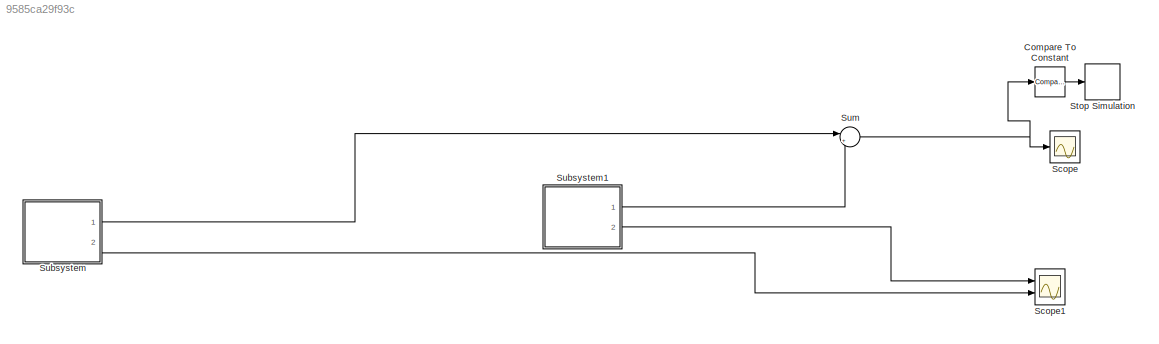
MODEL slx_9585ca29f93c
KIND model
CONFIG AbsTol = auto
CONFIG EnableMultiTasking = off
CONFIG FixedStep = auto
CONFIG MaxStep = auto
CONFIG MinStep = auto
CONFIG RelTol = 1e-3
CONFIG SampleTimeConstraint = Unconstrained
CONFIG SolverName = VariableStepAuto
CONFIG StartTime = 0.0
CONFIG StopTime = 500
WORKSPACE source: mxarray member
WORKSPACE InS = 30
BLOCK [Reference] Compare To Constant  REF=simulink/Logic and Bit
Operations/Compare
To Constant
  Ports = [1, 1]
  SourceBlock = simulink/Logic and Bit\nOperations/Compare\nTo Constant
  SourceProductBaseCode = SL
  SourceType = Compare To Constant
BLOCK [Scope] Scope
  Floating = off
  NumInputPorts = 1
  Ports = [1]
  ScopeSpecificationString = Simulink.scopes.TimeScopeBlockCfg('CurrentConfiguration', extmgr.ConfigurationSet(extmgr.Configuration('Core','General UI',true),extmgr.Configuration('Core','Source UI',true),extmgr.Configuration('Sources','WiredSimulink',true),extmgr.Configuration('Visuals','Time Domain',true,'SerializedDisplays',{struct('MinYLimReal','861.74124','MaxYLimReal','2244.32886','YLabelReal','','MinYLimMag','861.74124'...<+1341ch>
BLOCK [Scope] Scope1
  Floating = off
  NumInputPorts = 2
  Ports = [2]
  ScopeSpecificationString = Simulink.scopes.TimeScopeBlockCfg('CurrentConfiguration', extmgr.ConfigurationSet(extmgr.Configuration('Core','General UI',true),extmgr.Configuration('Core','Source UI',true),extmgr.Configuration('Sources','WiredSimulink',true,'DataLoggingVariableName','ScopeData1'),extmgr.Configuration('Visuals','Time Domain',true,'SerializedDisplays',{struct('MinYLimReal','-3.125','MaxYLimReal','28.125','YLabelR...<+1408ch>
BLOCK [Stop] Stop Simulation
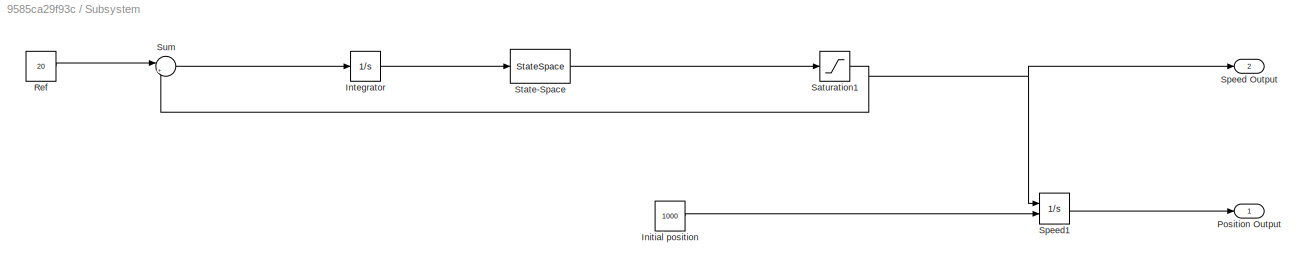
BLOCK [SubSystem] Subsystem
  Ports = [0, 2]
  RequestExecContextInheritance = off
BLOCK [Constant] Subsystem/Initial position
  Value = 1000
BLOCK [Integrator] Subsystem/Integrator
  Ports = [1, 1]
BLOCK [Outport] Subsystem/Position Output
BLOCK [Constant] Subsystem/Ref
  Value = 20
BLOCK [Saturate] Subsystem/Saturation1
  LowerLimit = 0
  UpperLimit = 40
BLOCK [Outport] Subsystem/Speed Output
  Port = 2
BLOCK [Integrator] Subsystem/Speed1
  InitialConditionSource = external
  Ports = [2, 1]
BLOCK [StateSpace] Subsystem/State-Space
  A = A
  B = B
  C = C
  D = D
  InitialCondition = 25
  Ports = [1, 1]
BLOCK [Sum] Subsystem/Sum
  Inputs = |+-
  Ports = [2, 1]
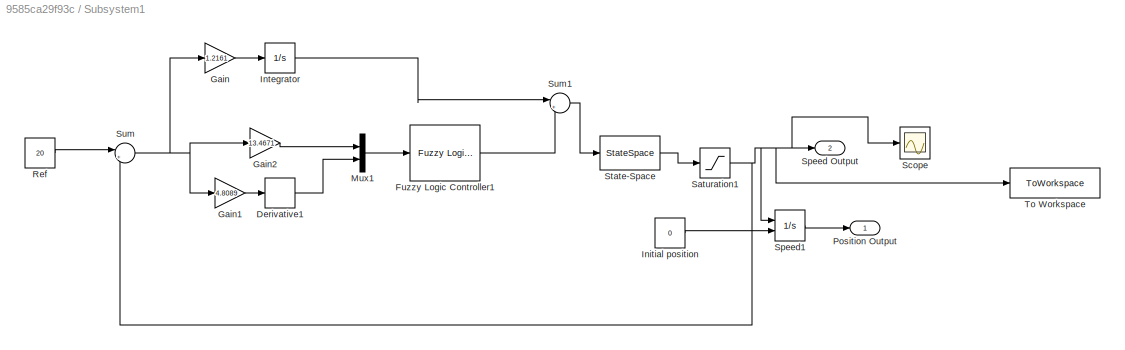
BLOCK [SubSystem] Subsystem1
  Ports = [0, 2]
  RequestExecContextInheritance = off
BLOCK [Derivative] Subsystem1/Derivative1
BLOCK [Reference] Subsystem1/Fuzzy Logic Controller1  REF=fuzblock/Fuzzy Logic   (lib defined in mdl_858b3b3e7478)
Controller
  Ports = [1, 1]
  SourceBlock = fuzblock/Fuzzy Logic \nController
  SourceProductBaseCode = FL
  SourceType = Fuzzy Inference System
BLOCK [Gain] Subsystem1/Gain
  Gain = 1.2161
BLOCK [Gain] Subsystem1/Gain1
  Gain = 4.8089
BLOCK [Gain] Subsystem1/Gain2
  Gain = 13.4671
BLOCK [Constant] Subsystem1/Initial position
  Value = 0
BLOCK [Integrator] Subsystem1/Integrator
  Ports = [1, 1]
BLOCK [Mux] Subsystem1/Mux1
  DisplayOption = bar
  Inputs = 2
  Ports = [2, 1]
BLOCK [Outport] Subsystem1/Position Output
BLOCK [Constant] Subsystem1/Ref
  Value = 20
BLOCK [Saturate] Subsystem1/Saturation1
  LowerLimit = 0
  UpperLimit = 100
BLOCK [Scope] Subsystem1/Scope
  Floating = off
  NumInputPorts = 1
  Ports = [1]
  ScopeSpecificationString = Simulink.scopes.TimeScopeBlockCfg('CurrentConfiguration', extmgr.ConfigurationSet(extmgr.Configuration('Core','General UI',true,'FigureColor',[0 0 0]),extmgr.Configuration('Core','Source UI',true),extmgr.Configuration('Sources','WiredSimulink',true,'DataLoggingVariableName','ScopeData1'),extmgr.Configuration('Visuals','Time Domain',true,'SerializedDisplays',{struct('MinYLimReal','10.34079','MaxYLi...<+2016ch>
BLOCK [Outport] Subsystem1/Speed Output
  Port = 2
BLOCK [Integrator] Subsystem1/Speed1
  InitialConditionSource = external
  Ports = [2, 1]
BLOCK [StateSpace] Subsystem1/State-Space
  A = A
  B = B
  C = C
  D = 0
  InitialCondition = 40
  Ports = [1, 1]
BLOCK [Sum] Subsystem1/Sum
  Inputs = |+-
  Ports = [2, 1]
BLOCK [Sum] Subsystem1/Sum1
  Inputs = |++
  Ports = [2, 1]
BLOCK [ToWorkspace] Subsystem1/To Workspace
  FixptAsFi = on
  MaxDataPoints = inf
  Ports = [1]
  SampleTime = 1
  SaveFormat = Timeseries
  VariableName = V
BLOCK [Sum] Sum
  Inputs = |+-
  Ports = [2, 1]
LINE Compare To Constant:1 -> Stop Simulation:1
LINE Subsystem/Initial position:1 -> Subsystem/Speed1:2
LINE Subsystem/Integrator:1 -> Subsystem/State-Space:1
LINE Subsystem/Ref:1 -> Subsystem/Sum:1
NET Subsystem/Saturation1:1 -> Subsystem/Speed Output:1, Subsystem/Speed1:1, Subsystem/Sum:2
LINE Subsystem/Speed1:1 -> Subsystem/Position Output:1
LINE Subsystem/State-Space:1 -> Subsystem/Saturation1:1
LINE Subsystem/Sum:1 -> Subsystem/Integrator:1
LINE Subsystem1/Derivative1:1 -> Subsystem1/Mux1:2
LINE Subsystem1/Fuzzy Logic Controller1:1 -> Subsystem1/Sum1:2
LINE Subsystem1/Gain1:1 -> Subsystem1/Derivative1:1
LINE Subsystem1/Gain2:1 -> Subsystem1/Mux1:1
LINE Subsystem1/Gain:1 -> Subsystem1/Integrator:1
LINE Subsystem1/Initial position:1 -> Subsystem1/Speed1:2
LINE Subsystem1/Integrator:1 -> Subsystem1/Sum1:1
LINE Subsystem1/Mux1:1 -> Subsystem1/Fuzzy Logic Controller1:1
LINE Subsystem1/Ref:1 -> Subsystem1/Sum:1
NET Subsystem1/Saturation1:1 -> Subsystem1/Scope:1, Subsystem1/Speed Output:1, Subsystem1/Speed1:1, Subsystem1/Sum:2, Subsystem1/To Workspace:1
LINE Subsystem1/Speed1:1 -> Subsystem1/Position Output:1
LINE Subsystem1/State-Space:1 -> Subsystem1/Saturation1:1
LINE Subsystem1/Sum1:1 -> Subsystem1/State-Space:1
NET Subsystem1/Sum:1 -> Subsystem1/Gain1:1, Subsystem1/Gain2:1, Subsystem1/Gain:1
LINE Subsystem1:1 -> Sum:2
LINE Subsystem1:2 -> Scope1:1
LINE Subsystem:1 -> Sum:1
LINE Subsystem:2 -> Scope1:2
NET Sum:1 -> Compare To Constant:1, Scope:1
note: NET lines group one-source signal fan-out (src -> all destinations, sorted); 1:1 wires keep LINE
